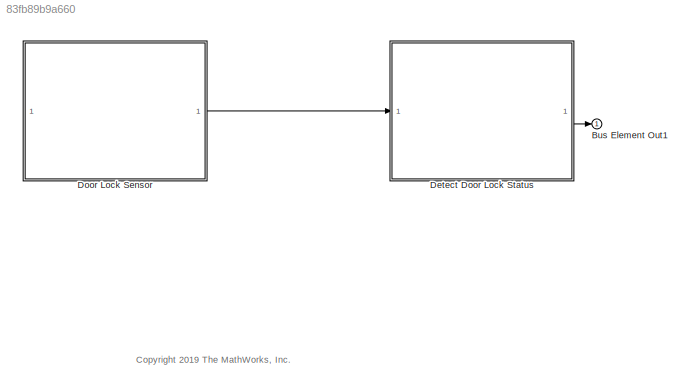
MODEL slx_83fb89b9a660
KIND model
CONFIG AbsTol = auto
CONFIG EnableMultiTasking = off
CONFIG FixedStep = auto
CONFIG MaxStep = auto
CONFIG MinStep = auto
CONFIG RelTol = 1e-3
CONFIG SampleTimeConstraint = Unconstrained
CONFIG SolverName = VariableStepAuto
CONFIG StartTime = 0.0
CONFIG StopTime = 10.0
BLOCK [Outport] Bus Element Out1
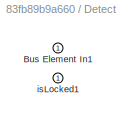
BLOCK [SubSystem] Detect Door Lock Status
  PortSchema = {"entries":[{"content":{"headerSize":26,"margin":15,"minimumSpacing":25,"sides":[{"content":{"connectorIds":["In1"]},"type":"ConnectorPlacement.EquallySpacedRectSide","uuid":"a0f82e88-5275-4bb9-87fe-a49bf19782cf"},{"content":{"connectorIds":["Out1"],"side":"RIGHT"},"type":"ConnectorPlacement.EquallySpacedRectSide","uuid":"4b3945c4-3891-41a7-b741-bb467a4ccb5a"},{"content":{"connectorIds":[],"side":...<+290ch>
BLOCK [Inport] Detect Door Lock Status/Bus Element In1
BLOCK [Outport] Detect Door Lock Status/isLocked1
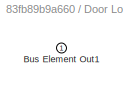
BLOCK [SubSystem] Door Lock Sensor
  PortSchema = {"entries":[{"content":{"headerSize":26,"margin":15,"minimumSpacing":25,"sides":[{"content":{"connectorIds":[]},"type":"ConnectorPlacement.EquallySpacedRectSide","uuid":"a0f82e88-5275-4bb9-87fe-a49bf19782cf"},{"content":{"connectorIds":["Out1"],"side":"RIGHT"},"type":"ConnectorPlacement.EquallySpacedRectSide","uuid":"4b3945c4-3891-41a7-b741-bb467a4ccb5a"},{"content":{"connectorIds":[],"side":"TOP"...<+285ch>
BLOCK [Outport] Door Lock Sensor/Bus Element Out1
ANNOTATION (root): <copyright redacted>
LINE Detect Door Lock Status:1 -> Bus Element Out1:1
LINE Door Lock Sensor:1 -> Detect Door Lock Status:1
